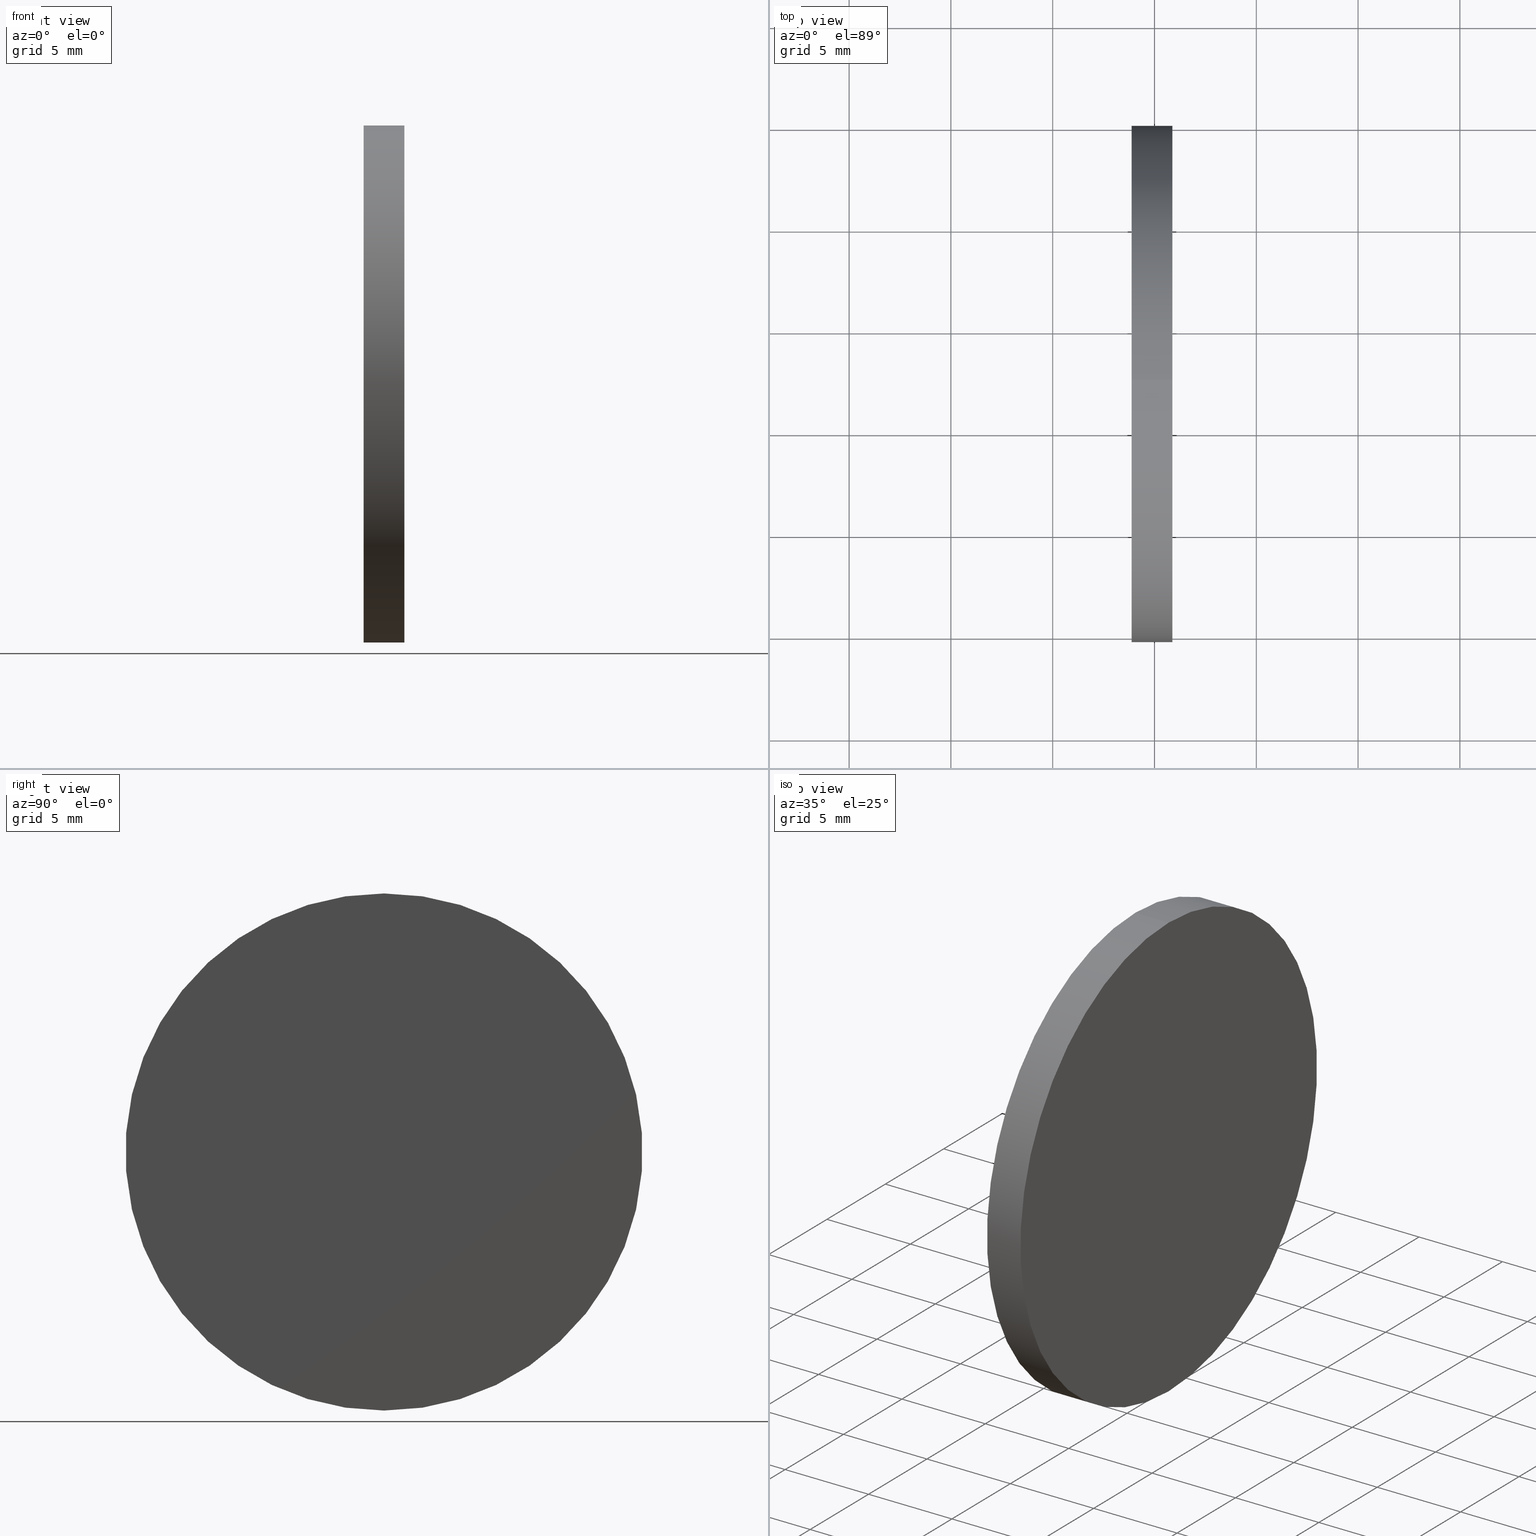
[diagram: canonical four-view strip — front | top / right | iso, engineering-drawing reading convention]
A machine part, canonical four-view strip (front | top / right | iso — engineering-drawing reading convention). The complete STEP part file that produces these views, byte-faithful:
ISO-10303-21;
HEADER;
FILE_DESCRIPTION (( 'STEP AP214' ),
    '1' );
FILE_NAME ('100498.STEP',
    '2019-06-12T06:15:41',
    ( '' ),
    ( '' ),
    'SwSTEP 2.0',
    'SolidWorks 2016',
    '' );
FILE_SCHEMA (( 'AUTOMOTIVE_DESIGN' ));
ENDSEC;

DATA;
#1 = MANIFOLD_SOLID_BREP ( '��ת1', #88 ) ;
#2 =( LENGTH_UNIT ( ) NAMED_UNIT ( * ) SI_UNIT ( .MILLI., .METRE. ) );
#3 =( NAMED_UNIT ( * ) SI_UNIT ( $, .STERADIAN. ) SOLID_ANGLE_UNIT ( ) );
#4 = ORIENTED_EDGE ( 'NONE', *, *, #132, .F. ) ;
#5 =( GEOMETRIC_REPRESENTATION_CONTEXT ( 3 ) GLOBAL_UNCERTAINTY_ASSIGNED_CONTEXT ( ( #17 ) ) GLOBAL_UNIT_ASSIGNED_CONTEXT ( ( #102, #41, #72 ) ) REPRESENTATION_CONTEXT ( 'NONE', 'WORKASPACE' ) );
#6 =( NAMED_UNIT ( * ) PLANE_ANGLE_UNIT ( ) SI_UNIT ( $, .RADIAN. ) );
#7 = ORIENTED_EDGE ( 'NONE', *, *, #89, .T. ) ;
#8 = DIRECTION ( 'NONE',  ( -0.0000000000000000000, 0.0000000000000000000, 1.000000000000000000 ) ) ;
#9 =( NAMED_UNIT ( * ) SI_UNIT ( $, .STERADIAN. ) SOLID_ANGLE_UNIT ( ) );
#10 = AXIS2_PLACEMENT_3D ( 'NONE', #21, #105, #115 ) ;
#11 = DIRECTION ( 'NONE',  ( 0.0000000000000000000, 0.0000000000000000000, 1.000000000000000000 ) ) ;
#12 = COLOUR_RGB ( '',1.000000000000000000, 1.000000000000000000, 1.000000000000000000 ) ;
#13 = ORIENTED_EDGE ( 'NONE', *, *, #135, .T. ) ;
#14 = FACE_OUTER_BOUND ( 'NONE', #62, .T. ) ;
#15 = DIRECTION ( 'NONE',  ( -1.000000000000000000, -0.0000000000000000000, -0.0000000000000000000 ) ) ;
#16 = PRESENTATION_LAYER_ASSIGNMENT (  '', '', ( #58 ) ) ;
#17 = UNCERTAINTY_MEASURE_WITH_UNIT (LENGTH_MEASURE( 1.000000000000000100E-005 ), #102, 'distance_accuracy_value', 'NONE');
#18 = DIRECTION ( 'NONE',  ( 0.0000000000000000000, 0.0000000000000000000, 1.000000000000000000 ) ) ;
#19 = PRESENTATION_STYLE_ASSIGNMENT (( #122 ) ) ;
#20 =( NAMED_UNIT ( * ) PLANE_ANGLE_UNIT ( ) SI_UNIT ( $, .RADIAN. ) );
#21 = CARTESIAN_POINT ( 'NONE',  ( 175.8774097584038100, 57.31014665613982100, 0.0000000000000000000 ) ) ;
#22 = PRODUCT_DEFINITION_FORMATION_WITH_SPECIFIED_SOURCE ( '�κ�', '', #49, .NOT_KNOWN. ) ;
#23 = ADVANCED_FACE ( 'NONE', ( #14 ), #124, .T. ) ;
#24 = PRODUCT_RELATED_PRODUCT_CATEGORY ( 'part', '', ( #49 ) ) ;
#25 = PRODUCT_CONTEXT ( 'NONE', #42, 'mechanical' ) ;
#26 = DIRECTION ( 'NONE',  ( -1.000000000000000000, -0.0000000000000000000, -0.0000000000000000000 ) ) ;
#27 =( LENGTH_UNIT ( ) NAMED_UNIT ( * ) SI_UNIT ( .MILLI., .METRE. ) );
#28 = VERTEX_POINT ( 'NONE', #59 ) ;
#29 = CARTESIAN_POINT ( 'NONE',  ( 173.8774097584038100, 57.31014665613982100, 0.0000000000000000000 ) ) ;
#30 = SURFACE_SIDE_STYLE ('',( #103 ) ) ;
#31 = ADVANCED_BREP_SHAPE_REPRESENTATION ( '100498', ( #1, #76 ), #54 ) ;
#32 = ORIENTED_EDGE ( 'NONE', *, *, #101, .F. ) ;
#33 = ADVANCED_FACE ( 'NONE', ( #47 ), #45, .T. ) ;
#34 = ADVANCED_FACE ( 'NONE', ( #70 ), #104, .F. ) ;
#35 = ORIENTED_EDGE ( 'NONE', *, *, #135, .F. ) ;
#36 = VERTEX_POINT ( 'NONE', #64 ) ;
#37 = CIRCLE ( 'NONE', #68, 12.70000000000001000 ) ;
#38 = MECHANICAL_DESIGN_GEOMETRIC_PRESENTATION_REPRESENTATION (  '', ( #78 ), #46 ) ;
#39 = FILL_AREA_STYLE ('',( #134 ) ) ;
#40 = VERTEX_POINT ( 'NONE', #99 ) ;
#41 =( NAMED_UNIT ( * ) PLANE_ANGLE_UNIT ( ) SI_UNIT ( $, .RADIAN. ) );
#42 = APPLICATION_CONTEXT ( 'automotive_design' ) ;
#43 = CIRCLE ( 'NONE', #133, 12.70000000000001000 ) ;
#44 = ORIENTED_EDGE ( 'NONE', *, *, #132, .T. ) ;
#45 = CYLINDRICAL_SURFACE ( 'NONE', #140, 12.70000000000001000 ) ;
#46 =( GEOMETRIC_REPRESENTATION_CONTEXT ( 3 ) GLOBAL_UNCERTAINTY_ASSIGNED_CONTEXT ( ( #67 ) ) GLOBAL_UNIT_ASSIGNED_CONTEXT ( ( #27, #20, #9 ) ) REPRESENTATION_CONTEXT ( 'NONE', 'WORKASPACE' ) );
#47 = FACE_OUTER_BOUND ( 'NONE', #117, .T. ) ;
#48 = SURFACE_STYLE_FILL_AREA ( #39 ) ;
#49 = PRODUCT ( '100498', '100498', '', ( #25 ) ) ;
#50 = CIRCLE ( 'NONE', #86, 12.70000000000001000 ) ;
#51 = DIRECTION ( 'NONE',  ( 0.0000000000000000000, 0.0000000000000000000, 1.000000000000000000 ) ) ;
#52 = DIRECTION ( 'NONE',  ( 0.0000000000000000000, 0.0000000000000000000, -1.000000000000000000 ) ) ;
#53 = DIRECTION ( 'NONE',  ( -1.000000000000000000, -0.0000000000000000000, -0.0000000000000000000 ) ) ;
#54 =( GEOMETRIC_REPRESENTATION_CONTEXT ( 3 ) GLOBAL_UNCERTAINTY_ASSIGNED_CONTEXT ( ( #79 ) ) GLOBAL_UNIT_ASSIGNED_CONTEXT ( ( #2, #6, #3 ) ) REPRESENTATION_CONTEXT ( 'NONE', 'WORKASPACE' ) );
#55 = COLOUR_RGB ( '',1.000000000000000000, 1.000000000000000000, 1.000000000000000000 ) ;
#56 = AXIS2_PLACEMENT_3D ( 'NONE', #29, #111, #52 ) ;
#57 = EDGE_LOOP ( 'NONE', ( #13, #84 ) ) ;
#58 = STYLED_ITEM ( 'NONE', ( #19 ), #31 ) ;
#59 = CARTESIAN_POINT ( 'NONE',  ( 173.8774097584038100, 57.31014665613982100, -12.70000000000001000 ) ) ;
#60 = SURFACE_SIDE_STYLE ('',( #48 ) ) ;
#61 = DIRECTION ( 'NONE',  ( 0.0000000000000000000, 0.0000000000000000000, 1.000000000000000000 ) ) ;
#62 = EDGE_LOOP ( 'NONE', ( #118, #69, #44, #32 ) ) ;
#63 = VECTOR ( 'NONE', #93, 1000.000000000000000 ) ;
#64 = CARTESIAN_POINT ( 'NONE',  ( 175.8774097584038100, 57.31014665613982100, 12.70000000000001000 ) ) ;
#65 = CARTESIAN_POINT ( 'NONE',  ( 168.2475137072466700, 57.31014665613982100, -12.70000000000001000 ) ) ;
#66 = LINE ( 'NONE', #100, #63 ) ;
#67 = UNCERTAINTY_MEASURE_WITH_UNIT (LENGTH_MEASURE( 1.000000000000000100E-005 ), #27, 'distance_accuracy_value', 'NONE');
#68 = AXIS2_PLACEMENT_3D ( 'NONE', #80, #15, #18 ) ;
#69 = ORIENTED_EDGE ( 'NONE', *, *, #139, .T. ) ;
#70 = FACE_OUTER_BOUND ( 'NONE', #91, .T. ) ;
#71 = ORIENTED_EDGE ( 'NONE', *, *, #89, .F. ) ;
#72 =( NAMED_UNIT ( * ) SI_UNIT ( $, .STERADIAN. ) SOLID_ANGLE_UNIT ( ) );
#73 = LINE ( 'NONE', #65, #96 ) ;
#74 = DIRECTION ( 'NONE',  ( -1.000000000000000000, -0.0000000000000000000, -0.0000000000000000000 ) ) ;
#75 = FILL_AREA_STYLE ('',( #82 ) ) ;
#76 = AXIS2_PLACEMENT_3D ( 'NONE', #83, #61, #107 ) ;
#77 = PRODUCT_DEFINITION_SHAPE ( 'NONE', 'NONE',  #81 ) ;
#78 = STYLED_ITEM ( 'NONE', ( #136 ), #1 ) ;
#79 = UNCERTAINTY_MEASURE_WITH_UNIT (LENGTH_MEASURE( 1.000000000000000100E-005 ), #2, 'distance_accuracy_value', 'NONE');
#80 = CARTESIAN_POINT ( 'NONE',  ( 175.8774097584038100, 57.31014665613982100, 0.0000000000000000000 ) ) ;
#81 = PRODUCT_DEFINITION ( 'δ֪', '', #22, #119 ) ;
#82 = FILL_AREA_STYLE_COLOUR ( '', #55 ) ;
#83 = CARTESIAN_POINT ( 'NONE',  ( 0.0000000000000000000, 0.0000000000000000000, 0.0000000000000000000 ) ) ;
#84 = ORIENTED_EDGE ( 'NONE', *, *, #101, .T. ) ;
#85 = SURFACE_STYLE_USAGE ( .BOTH. , #30 ) ;
#86 = AXIS2_PLACEMENT_3D ( 'NONE', #112, #137, #11 ) ;
#87 = FACE_OUTER_BOUND ( 'NONE', #57, .T. ) ;
#88 = CLOSED_SHELL ( 'NONE', ( #33, #34, #23, #130 ) ) ;
#89 = EDGE_CURVE ( 'NONE', #36, #40, #95, .T. ) ;
#90 = APPLICATION_PROTOCOL_DEFINITION ( 'draft international standard', 'automotive_design', 1998, #121 ) ;
#91 = EDGE_LOOP ( 'NONE', ( #71, #116 ) ) ;
#92 = CARTESIAN_POINT ( 'NONE',  ( 175.8774097584038100, 57.31014665613982100, 0.0000000000000000000 ) ) ;
#93 = DIRECTION ( 'NONE',  ( -1.000000000000000000, -0.0000000000000000000, -0.0000000000000000000 ) ) ;
#94 = PLANE ( 'NONE',  #56 ) ;
#95 = CIRCLE ( 'NONE', #10, 12.70000000000001000 ) ;
#96 = VECTOR ( 'NONE', #53, 1000.000000000000000 ) ;
#97 = ORIENTED_EDGE ( 'NONE', *, *, #125, .T. ) ;
#98 = CARTESIAN_POINT ( 'NONE',  ( 173.8774097584038100, 57.31014665613982100, 0.0000000000000000000 ) ) ;
#99 = CARTESIAN_POINT ( 'NONE',  ( 175.8774097584038100, 57.31014665613982100, -12.70000000000001000 ) ) ;
#100 = CARTESIAN_POINT ( 'NONE',  ( 168.2475137072466700, 57.31014665613982100, 12.70000000000001000 ) ) ;
#101 = EDGE_CURVE ( 'NONE', #28, #114, #50, .T. ) ;
#102 =( LENGTH_UNIT ( ) NAMED_UNIT ( * ) SI_UNIT ( .MILLI., .METRE. ) );
#103 = SURFACE_STYLE_FILL_AREA ( #75 ) ;
#104 = PLANE ( 'NONE',  #106 ) ;
#105 = DIRECTION ( 'NONE',  ( -1.000000000000000000, -0.0000000000000000000, -0.0000000000000000000 ) ) ;
#106 = AXIS2_PLACEMENT_3D ( 'NONE', #92, #128, #8 ) ;
#107 = DIRECTION ( 'NONE',  ( 1.000000000000000000, 0.0000000000000000000, 0.0000000000000000000 ) ) ;
#108 = CARTESIAN_POINT ( 'NONE',  ( 168.2475137072466700, 57.31014665613982100, 0.0000000000000000000 ) ) ;
#109 = DIRECTION ( 'NONE',  ( 0.0000000000000000000, 0.0000000000000000000, 1.000000000000000000 ) ) ;
#110 = CARTESIAN_POINT ( 'NONE',  ( 168.2475137072466700, 57.31014665613982100, 0.0000000000000000000 ) ) ;
#111 = DIRECTION ( 'NONE',  ( 1.000000000000000000, 0.0000000000000000000, 0.0000000000000000000 ) ) ;
#112 = CARTESIAN_POINT ( 'NONE',  ( 173.8774097584038100, 57.31014665613982100, 0.0000000000000000000 ) ) ;
#113 = AXIS2_PLACEMENT_3D ( 'NONE', #108, #120, #109 ) ;
#114 = VERTEX_POINT ( 'NONE', #138 ) ;
#115 = DIRECTION ( 'NONE',  ( 0.0000000000000000000, 0.0000000000000000000, 1.000000000000000000 ) ) ;
#116 = ORIENTED_EDGE ( 'NONE', *, *, #139, .F. ) ;
#117 = EDGE_LOOP ( 'NONE', ( #7, #97, #35, #4 ) ) ;
#118 = ORIENTED_EDGE ( 'NONE', *, *, #125, .F. ) ;
#119 = PRODUCT_DEFINITION_CONTEXT ( 'detailed design', #121, 'design' ) ;
#120 = DIRECTION ( 'NONE',  ( -1.000000000000000000, -0.0000000000000000000, -0.0000000000000000000 ) ) ;
#121 = APPLICATION_CONTEXT ( 'automotive_design' ) ;
#122 = SURFACE_STYLE_USAGE ( .BOTH. , #60 ) ;
#123 = DIRECTION ( 'NONE',  ( 0.0000000000000000000, 0.0000000000000000000, 1.000000000000000000 ) ) ;
#124 = CYLINDRICAL_SURFACE ( 'NONE', #113, 12.70000000000001000 ) ;
#125 = EDGE_CURVE ( 'NONE', #40, #28, #73, .T. ) ;
#126 = APPLICATION_PROTOCOL_DEFINITION ( 'draft international standard', 'automotive_design', 1998, #42 ) ;
#127 = SHAPE_DEFINITION_REPRESENTATION ( #77, #31 ) ;
#128 = DIRECTION ( 'NONE',  ( -1.000000000000000000, 0.0000000000000000000, -0.0000000000000000000 ) ) ;
#129 = PRESENTATION_LAYER_ASSIGNMENT (  '', '', ( #78 ) ) ;
#130 = ADVANCED_FACE ( 'NONE', ( #87 ), #94, .F. ) ;
#131 = MECHANICAL_DESIGN_GEOMETRIC_PRESENTATION_REPRESENTATION (  '', ( #58 ), #5 ) ;
#132 = EDGE_CURVE ( 'NONE', #36, #114, #66, .T. ) ;
#133 = AXIS2_PLACEMENT_3D ( 'NONE', #98, #26, #123 ) ;
#134 = FILL_AREA_STYLE_COLOUR ( '', #12 ) ;
#135 = EDGE_CURVE ( 'NONE', #114, #28, #43, .T. ) ;
#136 = PRESENTATION_STYLE_ASSIGNMENT (( #85 ) ) ;
#137 = DIRECTION ( 'NONE',  ( -1.000000000000000000, -0.0000000000000000000, -0.0000000000000000000 ) ) ;
#138 = CARTESIAN_POINT ( 'NONE',  ( 173.8774097584038100, 57.31014665613982100, 12.70000000000001000 ) ) ;
#139 = EDGE_CURVE ( 'NONE', #40, #36, #37, .T. ) ;
#140 = AXIS2_PLACEMENT_3D ( 'NONE', #110, #74, #51 ) ;
ENDSEC;
END-ISO-10303-21;
